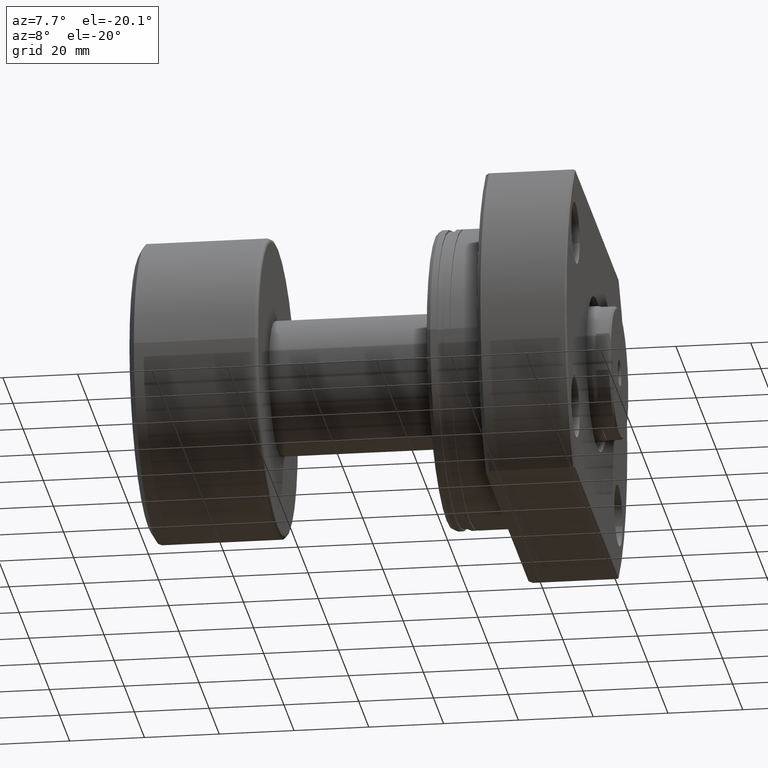
[diagram: clean part render]
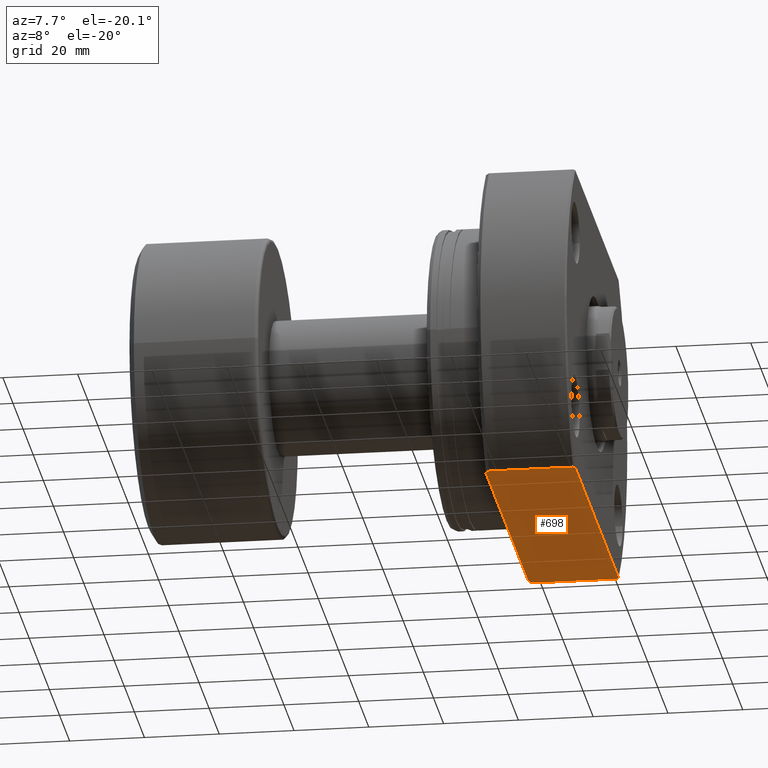
[diagram: same view with one face highlighted and labeled with its STEP entity id]
A machine part, auxiliary view. The second image highlights one B-rep face of the part: STEP entity #698.
In plain terms, the highlighted planar face has unit normal (0, 0, 1).
Its self-contained STEP definition (entity closure, byte-faithful):
#14 = CARTESIAN_POINT ( 'NONE',  ( 40.20000000000000284, 42.84857057125709190, -42.00000000000000711 ) ) ;
#74 = CARTESIAN_POINT ( 'NONE',  ( 16.86492660039200686, 43.08042289352572851, -42.00000000000000711 ) ) ;
#96 = FACE_OUTER_BOUND ( 'NONE', #868, .T. ) ;
#136 = ORIENTED_EDGE ( 'NONE', *, *, #1462, .F. ) ;
#274 = CARTESIAN_POINT ( 'NONE',  ( 39.86712069734446828, 43.31376578414313627, -42.00000000000000711 ) ) ;
#286 = CARTESIAN_POINT ( 'NONE',  ( 17.19999999999998153, -43.54595273960524793, -41.99999999999999289 ) ) ;
#438 = CARTESIAN_POINT ( 'NONE',  ( 16.20000000000000639, -39.99999999999999289, -42.00000000000000711 ) ) ;
#442 = ORIENTED_EDGE ( 'NONE', *, *, #799, .T. ) ;
#452 = VERTEX_POINT ( 'NONE', #1932 ) ;
#464 = CARTESIAN_POINT ( 'NONE',  ( 39.70000000000009521, 43.54595273960585189, -42.00000000000002842 ) ) ;
#574 = VECTOR ( 'NONE', #2781, 1000.000000000000000 ) ;
#597 = VERTEX_POINT ( 'NONE', #1368 ) ;
#607 = PLANE ( 'NONE',  #2957 ) ;
#689 = CARTESIAN_POINT ( 'NONE',  ( 39.86709459080173445, -43.31380205492687452, -42.00000000000000711 ) ) ;
#698 = ADVANCED_FACE ( 'NONE', ( #96 ), #607, .F. ) ;
#714 = LINE ( 'NONE', #438, #574 ) ;
#799 = EDGE_CURVE ( 'NONE', #2079, #3022, #2703, .T. ) ;
#801 = CARTESIAN_POINT ( 'NONE',  ( 39.70000000000009521, 43.54595273960585189, -42.00000000000002842 ) ) ;
#868 = EDGE_LOOP ( 'NONE', ( #442, #2074, #2970, #1187, #2174, #2237, #2287, #136 ) ) ;
#889 = VECTOR ( 'NONE', #2046, 1000.000000000000000 ) ;
#994 = LINE ( 'NONE', #1011, #889 ) ;
#1011 = CARTESIAN_POINT ( 'NONE',  ( 40.20000000000000284, -60.00000000000000000, -42.00000000000000711 ) ) ;
#1022 = CARTESIAN_POINT ( 'NONE',  ( -2.997602166487922659E-12, -43.54595273960475055, -41.99999999999999289 ) ) ;
#1052 = B_SPLINE_CURVE_WITH_KNOTS ( 'NONE', 3,
 ( #2918, #689, #2749, #1264 ),
 .UNSPECIFIED., .F., .F.,
 ( 4, 4 ),
 ( 0.06842734416309759204, 0.06928669907482787327 ),
 .UNSPECIFIED. ) ;
#1062 = CARTESIAN_POINT ( 'NONE',  ( 16.53144698496875975, -42.61350898229062523, -42.00000000000000711 ) ) ;
#1103 = DIRECTION ( 'NONE',  ( 1.000000000000000000, 0.000000000000000000, -0.000000000000000000 ) ) ;
#1125 = CARTESIAN_POINT ( 'NONE',  ( 16.19999999999999929, 42.14558102577294108, -42.00000000000000711 ) ) ;
#1134 = EDGE_CURVE ( 'NONE', #1169, #597, #714, .T. ) ;
#1157 = EDGE_CURVE ( 'NONE', #1441, #2125, #1281, .T. ) ;
#1169 = VERTEX_POINT ( 'NONE', #2609 ) ;
#1187 = ORIENTED_EDGE ( 'NONE', *, *, #3042, .F. ) ;
#1227 = CARTESIAN_POINT ( 'NONE',  ( 17.19999999999998153, 43.54595273960649848, -42.00000000000002842 ) ) ;
#1264 = CARTESIAN_POINT ( 'NONE',  ( 40.20000000000000284, -42.84857057125708479, -42.00000000000000711 ) ) ;
#1281 = LINE ( 'NONE', #1022, #1789 ) ;
#1312 = VECTOR ( 'NONE', #1675, 1000.000000000000000 ) ;
#1336 = DIRECTION ( 'NONE',  ( 0.000000000000000000, 0.000000000000000000, 1.000000000000000000 ) ) ;
#1342 = B_SPLINE_CURVE_WITH_KNOTS ( 'NONE', 3,
 ( #3103, #1062, #1746, #1763 ),
 .UNSPECIFIED., .F., .F.,
 ( 4, 4 ),
 ( 0.1630913217281462491, 0.1648252527028309933 ),
 .UNSPECIFIED. ) ;
#1368 = CARTESIAN_POINT ( 'NONE',  ( 16.20000000000000639, -42.14558102577294108, -42.00000000000000711 ) ) ;
#1441 = VERTEX_POINT ( 'NONE', #286 ) ;
#1462 = EDGE_CURVE ( 'NONE', #2079, #1169, #3187, .T. ) ;
#1673 = EDGE_CURVE ( 'NONE', #597, #1441, #1342, .T. ) ;
#1675 = DIRECTION ( 'NONE',  ( 1.000000000000000000, -2.886466111666351885E-14, -0.000000000000000000 ) ) ;
#1746 = CARTESIAN_POINT ( 'NONE',  ( 16.86482042041076923, -43.08027537375727434, -42.00000000000000711 ) ) ;
#1763 = CARTESIAN_POINT ( 'NONE',  ( 17.19999999999998153, -43.54595273960524793, -41.99999999999999289 ) ) ;
#1789 = VECTOR ( 'NONE', #3007, 1000.000000000000000 ) ;
#1831 = EDGE_CURVE ( 'NONE', #2595, #3022, #2438, .T. ) ;
#1838 = CARTESIAN_POINT ( 'NONE',  ( -4.857225732735059864E-13, 43.54595273960703850, -42.00000000000000711 ) ) ;
#1932 = CARTESIAN_POINT ( 'NONE',  ( 40.20000000000000284, -42.84857057125708479, -42.00000000000000711 ) ) ;
#2046 = DIRECTION ( 'NONE',  ( -4.782824563834189405E-17, 1.000000000000000000, -0.000000000000000000 ) ) ;
#2074 = ORIENTED_EDGE ( 'NONE', *, *, #1831, .F. ) ;
#2079 = VERTEX_POINT ( 'NONE', #3138 ) ;
#2125 = VERTEX_POINT ( 'NONE', #2637 ) ;
#2174 = ORIENTED_EDGE ( 'NONE', *, *, #1157, .F. ) ;
#2237 = ORIENTED_EDGE ( 'NONE', *, *, #1673, .F. ) ;
#2287 = ORIENTED_EDGE ( 'NONE', *, *, #1134, .F. ) ;
#2438 = B_SPLINE_CURVE_WITH_KNOTS ( 'NONE', 3,
 ( #14, #2717, #274, #801 ),
 .UNSPECIFIED., .F., .F.,
 ( 4, 4 ),
 ( 0.1639571914734298530, 0.1648217309186877089 ),
 .UNSPECIFIED. ) ;
#2595 = VERTEX_POINT ( 'NONE', #3165 ) ;
#2609 = CARTESIAN_POINT ( 'NONE',  ( 16.19999999999999929, 42.14558102577294108, -42.00000000000000711 ) ) ;
#2637 = CARTESIAN_POINT ( 'NONE',  ( 39.70000000000009521, -43.54595273960589452, -41.99999999999999289 ) ) ;
#2673 = EDGE_CURVE ( 'NONE', #452, #2595, #994, .T. ) ;
#2703 = LINE ( 'NONE', #2886, #1312 ) ;
#2717 = CARTESIAN_POINT ( 'NONE',  ( 40.03379223298939849, 43.08130799721279658, -42.00000000000000711 ) ) ;
#2749 = CARTESIAN_POINT ( 'NONE',  ( 40.03376598237900197, -43.08134475541973529, -42.00000000000000711 ) ) ;
#2781 = DIRECTION ( 'NONE',  ( 4.782824563834189405E-17, -1.000000000000000000, 0.000000000000000000 ) ) ;
#2886 = CARTESIAN_POINT ( 'NONE',  ( -4.857225732735059864E-13, 43.54595273960700297, -42.00000000000002842 ) ) ;
#2918 = CARTESIAN_POINT ( 'NONE',  ( 39.70000000000009521, -43.54595273960589452, -41.99999999999999289 ) ) ;
#2957 = AXIS2_PLACEMENT_3D ( 'NONE', #1838, #1336, #1103 ) ;
#2970 = ORIENTED_EDGE ( 'NONE', *, *, #2673, .F. ) ;
#3007 = DIRECTION ( 'NONE',  ( 1.000000000000000000, -2.886466111666351885E-14, -0.000000000000000000 ) ) ;
#3022 = VERTEX_POINT ( 'NONE', #464 ) ;
#3042 = EDGE_CURVE ( 'NONE', #2125, #452, #1052, .T. ) ;
#3048 = CARTESIAN_POINT ( 'NONE',  ( 16.53155433190904589, 42.61366053181948388, -42.00000000000000711 ) ) ;
#3103 = CARTESIAN_POINT ( 'NONE',  ( 16.20000000000000639, -42.14558102577294108, -42.00000000000000711 ) ) ;
#3138 = CARTESIAN_POINT ( 'NONE',  ( 17.19999999999998153, 43.54595273960649848, -42.00000000000002842 ) ) ;
#3165 = CARTESIAN_POINT ( 'NONE',  ( 40.20000000000000284, 42.84857057125709190, -42.00000000000000711 ) ) ;
#3187 = B_SPLINE_CURVE_WITH_KNOTS ( 'NONE', 3,
 ( #1227, #74, #3048, #1125 ),
 .UNSPECIFIED., .F., .F.,
 ( 4, 4 ),
 ( 0.06843084807226249011, 0.07015410504178025419 ),
 .UNSPECIFIED. ) ;